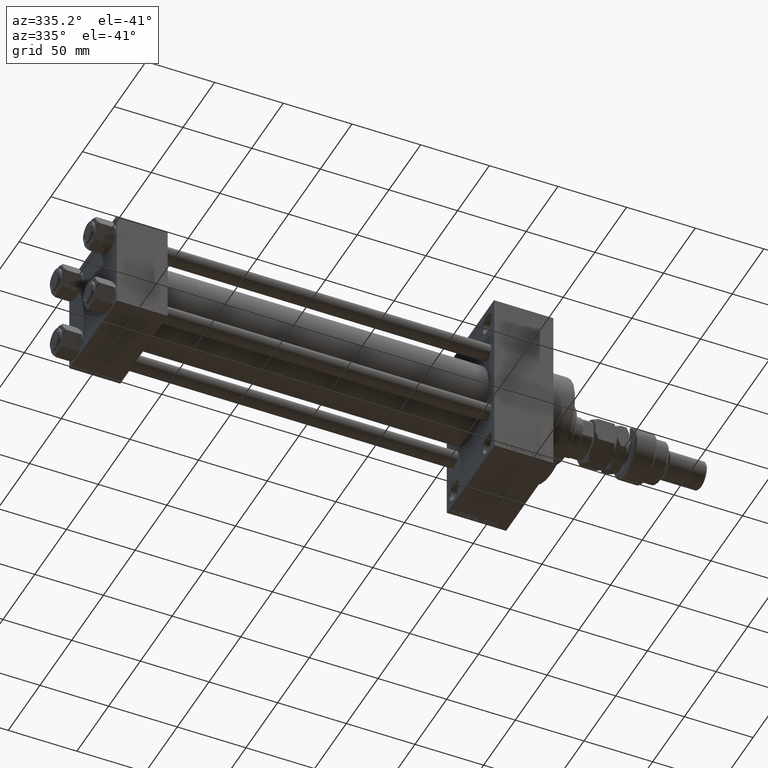
[diagram: clean part render]
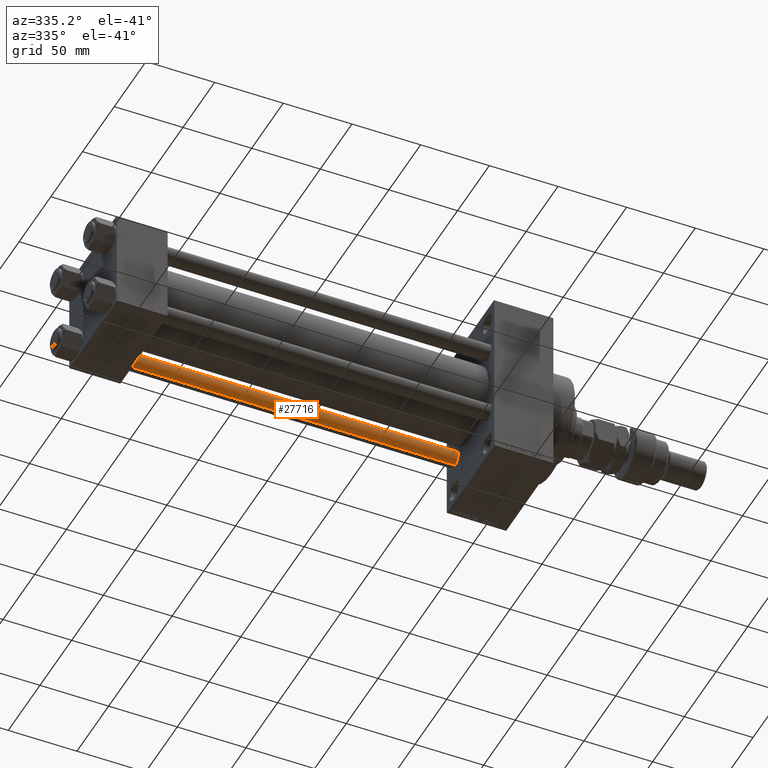
[diagram: same view with one face highlighted and labeled with its STEP entity id]
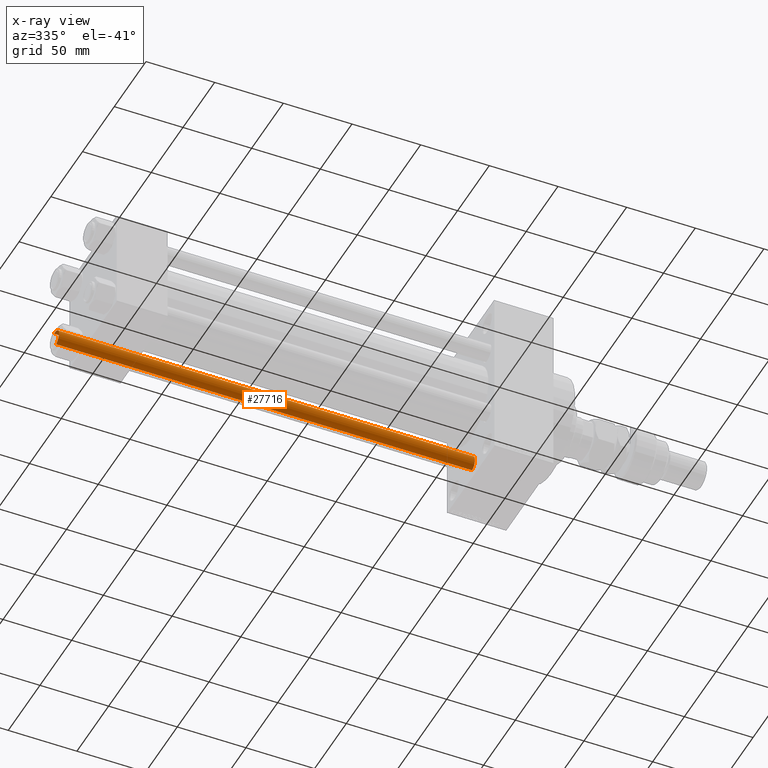
[diagram: x-ray of the same camera — body ghosted, the highlighted face saturated]
A machine part, auxiliary view. The second image highlights one B-rep face of the part: STEP entity #27716.
The next image is the same camera in x-ray: the body ghosted, the highlighted face saturated — about 0% of this face is hidden behind the body in this view.
In plain terms, the highlighted cylindrical surface (edge-blend (fillet) strip) has radius 6 mm, axis along (1, -0, 0).
Its self-contained STEP definition (entity closure, byte-faithful):
#4655 = ORIENTED_EDGE ( 'NONE', *, *, #48023, .T. ) ;
#4937 = EDGE_CURVE ( 'NONE', #10920, #33786, #31427, .T. ) ;
#5580 = DIRECTION ( 'NONE',  ( 0.000000000000000000, 0.000000000000000000, -1.000000000000000000 ) ) ;
#5840 = VERTEX_POINT ( 'NONE', #35468 ) ;
#9004 = LINE ( 'NONE', #17983, #37409 ) ;
#9438 = DIRECTION ( 'NONE',  ( -0.000000000000000000, -0.000000000000000000, -1.000000000000000000 ) ) ;
#10920 = VERTEX_POINT ( 'NONE', #38057 ) ;
#14685 = EDGE_CURVE ( 'NONE', #48808, #10920, #23607, .T. ) ;
#15541 = DIRECTION ( 'NONE',  ( -0.000000000000000000, -0.000000000000000000, -1.000000000000000000 ) ) ;
#17983 = CARTESIAN_POINT ( 'NONE',  ( 6.000000000000000888, 7.347880794884120722E-16, 304.0000000000000000 ) ) ;
#21646 = CIRCLE ( 'NONE', #52058, 6.000000000000000888 ) ;
#23607 = CIRCLE ( 'NONE', #24489, 6.000000000000000888 ) ;
#24315 = CARTESIAN_POINT ( 'NONE',  ( 6.000000000000000888, 7.347880794884120722E-16, 303.5000000000000000 ) ) ;
#24489 = AXIS2_PLACEMENT_3D ( 'NONE', #30174, #5580, #33902 ) ;
#25287 = EDGE_LOOP ( 'NONE', ( #49332, #52230, #38540, #4655 ) ) ;
#27716 = ADVANCED_FACE ( 'NONE', ( #49404 ), #29280, .T. ) ;
#29280 = CYLINDRICAL_SURFACE ( 'NONE', #49103, 6.000000000000000888 ) ;
#29458 = CARTESIAN_POINT ( 'NONE',  ( 0.000000000000000000, 0.000000000000000000, 0.4999999999999449329 ) ) ;
#30174 = CARTESIAN_POINT ( 'NONE',  ( 0.000000000000000000, 0.000000000000000000, 303.5000000000000000 ) ) ;
#31427 = LINE ( 'NONE', #43074, #46998 ) ;
#31953 = EDGE_CURVE ( 'NONE', #48808, #5840, #9004, .T. ) ;
#33515 = CARTESIAN_POINT ( 'NONE',  ( 0.000000000000000000, 0.000000000000000000, 304.0000000000000000 ) ) ;
#33786 = VERTEX_POINT ( 'NONE', #46645 ) ;
#33902 = DIRECTION ( 'NONE',  ( 1.000000000000000000, 0.000000000000000000, 0.000000000000000000 ) ) ;
#35468 = CARTESIAN_POINT ( 'NONE',  ( 6.000000000000000888, 7.347880794884120722E-16, 0.4999999999999449329 ) ) ;
#37409 = VECTOR ( 'NONE', #37565, 1000.000000000000000 ) ;
#37565 = DIRECTION ( 'NONE',  ( -0.000000000000000000, -0.000000000000000000, -1.000000000000000000 ) ) ;
#38057 = CARTESIAN_POINT ( 'NONE',  ( -6.000000000000000888, 0.000000000000000000, 303.5000000000000000 ) ) ;
#38540 = ORIENTED_EDGE ( 'NONE', *, *, #4937, .T. ) ;
#40586 = DIRECTION ( 'NONE',  ( 1.000000000000000000, 0.000000000000000000, 0.000000000000000000 ) ) ;
#40928 = DIRECTION ( 'NONE',  ( -1.000000000000000000, 0.000000000000000000, 0.000000000000000000 ) ) ;
#43074 = CARTESIAN_POINT ( 'NONE',  ( -6.000000000000000888, 0.000000000000000000, 304.0000000000000000 ) ) ;
#46645 = CARTESIAN_POINT ( 'NONE',  ( -6.000000000000000888, 0.000000000000000000, 0.4999999999999449329 ) ) ;
#46998 = VECTOR ( 'NONE', #15541, 1000.000000000000000 ) ;
#48023 = EDGE_CURVE ( 'NONE', #33786, #5840, #21646, .T. ) ;
#48808 = VERTEX_POINT ( 'NONE', #24315 ) ;
#49060 = DIRECTION ( 'NONE',  ( -0.000000000000000000, -0.000000000000000000, 1.000000000000000000 ) ) ;
#49103 = AXIS2_PLACEMENT_3D ( 'NONE', #33515, #9438, #40928 ) ;
#49332 = ORIENTED_EDGE ( 'NONE', *, *, #31953, .F. ) ;
#49404 = FACE_OUTER_BOUND ( 'NONE', #25287, .T. ) ;
#52058 = AXIS2_PLACEMENT_3D ( 'NONE', #29458, #49060, #40586 ) ;
#52230 = ORIENTED_EDGE ( 'NONE', *, *, #14685, .T. ) ;